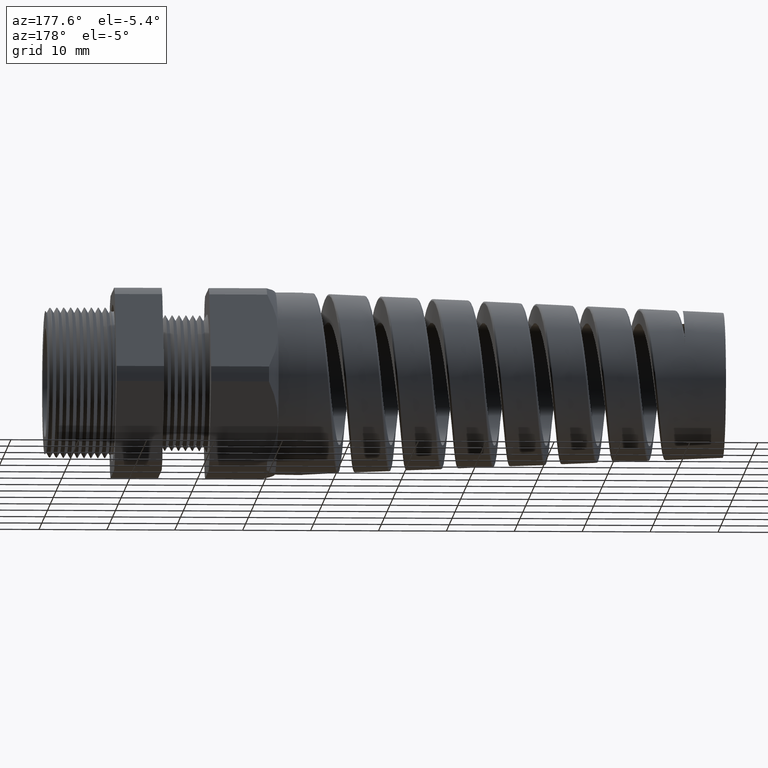
[diagram: clean part render]
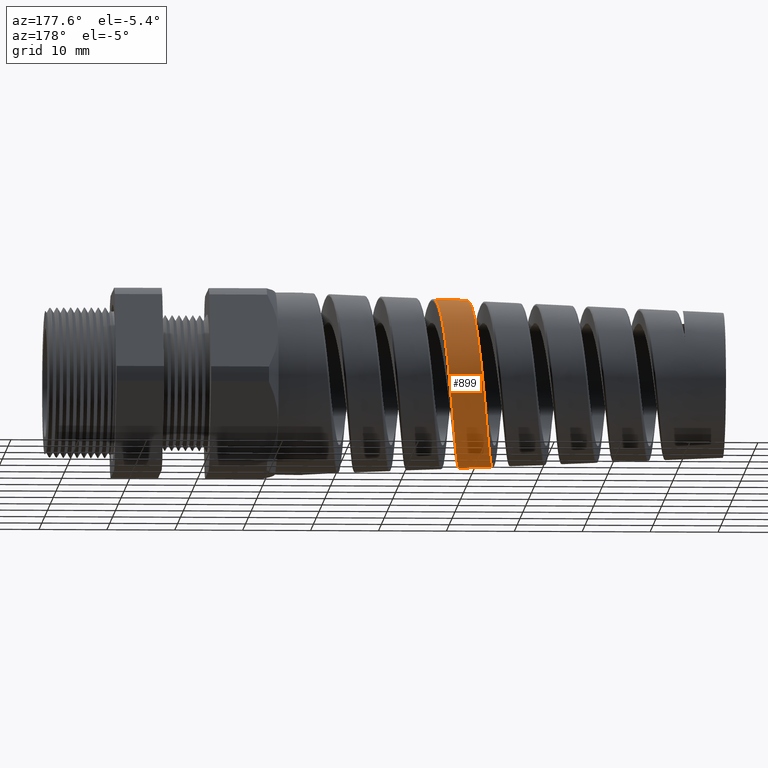
[diagram: same view with one face highlighted and labeled with its STEP entity id]
A machine part, auxiliary view. The second image highlights one B-rep face of the part: STEP entity #899.
In plain terms, the highlighted conical surface has half-angle 2.5 deg.
Its self-contained STEP definition (entity closure, byte-faithful):
#848 = EDGE_LOOP ( 'NONE', ( #900, #873, #876, #879 ) ) ;
#871 = VERTEX_POINT ( 'NONE', #7017 ) ;
#872 = VERTEX_POINT ( 'NONE', #7016 ) ;
#873 = ORIENTED_EDGE ( 'NONE', *, *, #874, .T. ) ;
#874 = EDGE_CURVE ( 'NONE', #872, #875, #7015, .T. ) ;
#875 = VERTEX_POINT ( 'NONE', #7011 ) ;
#876 = ORIENTED_EDGE ( 'NONE', *, *, #877, .T. ) ;
#877 = EDGE_CURVE ( 'NONE', #875, #878, #7009, .T. ) ;
#878 = VERTEX_POINT ( 'NONE', #7010 ) ;
#879 = ORIENTED_EDGE ( 'NONE', *, *, #880, .F. ) ;
#880 = EDGE_CURVE ( 'NONE', #871, #878, #6958, .T. ) ;
#899 = ADVANCED_FACE ( 'NONE', ( #5916 ), #5914, .T. ) ;
#900 = ORIENTED_EDGE ( 'NONE', *, *, #901, .T. ) ;
#901 = EDGE_CURVE ( 'NONE', #871, #872, #5909, .T. ) ;
#5857 = CARTESIAN_POINT ( 'NONE',  ( -2.360642178031954400, 6.088053702729461000E-013, 0.4867476284221823300 ) ) ;
#5858 = CARTESIAN_POINT ( 'NONE',  ( -2.362202108247921700, 0.01589824768566734700, 0.4866795203980623900 ) ) ;
#5859 = CARTESIAN_POINT ( 'NONE',  ( -2.363770448817714300, 0.03187396172094193700, 0.4858235674058733500 ) ) ;
#5860 = CARTESIAN_POINT ( 'NONE',  ( -2.366876014423838100, 0.06334296918111470600, 0.4825932175951855900 ) ) ;
#5861 = CARTESIAN_POINT ( 'NONE',  ( -2.369967248924988100, 0.09450347578120940600, 0.4778474637636200800 ) ) ;
#5862 = CARTESIAN_POINT ( 'NONE',  ( -2.373058741147371800, 0.1250529575456831600, 0.4701143661740167000 ) ) ;
#5863 = CARTESIAN_POINT ( 'NONE',  ( -2.376165083826359500, 0.1552912596340271200, 0.4608671375552795800 ) ) ;
#5864 = CARTESIAN_POINT ( 'NONE',  ( -2.377733683605348000, 0.1703297099778009700, 0.4554538644108495100 ) ) ;
#5865 = CARTESIAN_POINT ( 'NONE',  ( -2.382424419587694700, 0.2143821653622830800, 0.4370937173123010700 ) ) ;
#5866 = CARTESIAN_POINT ( 'NONE',  ( -2.385509008324024000, 0.2421421586439999100, 0.4221704892769691000 ) ) ;
#5867 = CARTESIAN_POINT ( 'NONE',  ( -2.390159137823261400, 0.2814281001084802900, 0.3958748164410731400 ) ) ;
#5868 = CARTESIAN_POINT ( 'NONE',  ( -2.391713011571464000, 0.2941283094396146500, 0.3864531830309390100 ) ) ;
#5869 = CARTESIAN_POINT ( 'NONE',  ( -2.394843786356402000, 0.3187142061478809900, 0.3662596071980213600 ) ) ;
#5870 = CARTESIAN_POINT ( 'NONE',  ( -2.396415143606032100, 0.3305495739207509100, 0.3555167410409078000 ) ) ;
#5871 = CARTESIAN_POINT ( 'NONE',  ( -2.401084949566256700, 0.3640718605153097600, 0.3219610897615400900 ) ) ;
#5872 = CARTESIAN_POINT ( 'NONE',  ( -2.404171061020829100, 0.3840488552209743200, 0.2976306707170361400 ) ) ;
#5873 = CARTESIAN_POINT ( 'NONE',  ( -2.408846639862338300, 0.4104440448512454200, 0.2581950883981331000 ) ) ;
#5874 = CARTESIAN_POINT ( 'NONE',  ( -2.410421606198408700, 0.4186829139602039100, 0.2444779620232459800 ) ) ;
#5875 = CARTESIAN_POINT ( 'NONE',  ( -2.413555425160300900, 0.4336851237939617900, 0.2164474168698265800 ) ) ;
#5876 = CARTESIAN_POINT ( 'NONE',  ( -2.415111940489588400, 0.4404463316276232000, 0.2021607384999528400 ) ) ;
#5877 = CARTESIAN_POINT ( 'NONE',  ( -2.419773143439021300, 0.4585673983790222200, 0.1585097691158997000 ) ) ;
#5878 = CARTESIAN_POINT ( 'NONE',  ( -2.422868563600597100, 0.4677852885552444800, 0.1283619677686000100 ) ) ;
#5879 = CARTESIAN_POINT ( 'NONE',  ( -2.427582936177740800, 0.4771725289460627700, 0.08152585138015813700 ) ) ;
#5880 = CARTESIAN_POINT ( 'NONE',  ( -2.429156235911682100, 0.4795284963769115800, 0.06574339058367492700 ) ) ;
#5881 = CARTESIAN_POINT ( 'NONE',  ( -2.432276625919567200, 0.4826610768721375500, 0.03429668467123764300 ) ) ;
#5882 = CARTESIAN_POINT ( 'NONE',  ( -2.433830548224830400, 0.4834519643115864400, 0.01856444000586293300 ) ) ;
#5883 = CARTESIAN_POINT ( 'NONE',  ( -2.436940572719288300, 0.4835000630158974900, -0.01291618841247194900 ) ) ;
#5884 = CARTESIAN_POINT ( 'NONE',  ( -2.438496548672600000, 0.4827573015123446400, -0.02866458440543398100 ) ) ;
#5885 = CARTESIAN_POINT ( 'NONE',  ( -2.441625182554495700, 0.4797114183832371600, -0.06017636053827438900 ) ) ;
#5886 = CARTESIAN_POINT ( 'NONE',  ( -2.443206666253258300, 0.4773877913387019600, -0.07602651585922827500 ) ) ;
#5887 = CARTESIAN_POINT ( 'NONE',  ( -2.447916522931588900, 0.4681517157074197600, -0.1227639812962546500 ) ) ;
#5888 = CARTESIAN_POINT ( 'NONE',  ( -2.451017137595864300, 0.4590308613771865700, -0.1529148409827534600 ) ) ;
#5889 = CARTESIAN_POINT ( 'NONE',  ( -2.455698845380159600, 0.4409955013398820800, -0.1966516371818310100 ) ) ;
#5890 = CARTESIAN_POINT ( 'NONE',  ( -2.457264272211631400, 0.4342529301998521700, -0.2109806065903356800 ) ) ;
#5891 = CARTESIAN_POINT ( 'NONE',  ( -2.460420656162083800, 0.4192575643483364400, -0.2391203507656278800 ) ) ;
#5892 = CARTESIAN_POINT ( 'NONE',  ( -2.461994274843653900, 0.4110835282810875200, -0.2527739053571762000 ) ) ;
#5893 = CARTESIAN_POINT ( 'NONE',  ( -2.466685298388816300, 0.3847936431109719700, -0.2921790474614655000 ) ) ;
#5894 = CARTESIAN_POINT ( 'NONE',  ( -2.469789943906988600, 0.3648469081987454300, -0.3165403030215089300 ) ) ;
#5895 = CARTESIAN_POINT ( 'NONE',  ( -2.474501880809359300, 0.3312610173819631700, -0.3501795357305198000 ) ) ;
#5896 = CARTESIAN_POINT ( 'NONE',  ( -2.476088493232054200, 0.3193933845459572300, -0.3609460379773589700 ) ) ;
#5897 = CARTESIAN_POINT ( 'NONE',  ( -2.479239250228620700, 0.2948281634069271900, -0.3811010591763274700 ) ) ;
#5898 = CARTESIAN_POINT ( 'NONE',  ( -2.482376989078828100, 0.2693740990231802100, -0.3999565317238025800 ) ) ;
#5899 = CARTESIAN_POINT ( 'NONE',  ( -2.485519606206205300, 0.2421641509198540500, -0.4162393856274202400 ) ) ;
#5900 = CARTESIAN_POINT ( 'NONE',  ( -2.488680060636786700, 0.2140615772109185600, -0.4312117066678586300 ) ) ;
#5901 = CARTESIAN_POINT ( 'NONE',  ( -2.490264172017351700, 0.1996052676603919900, -0.4380109021394442100 ) ) ;
#5902 = CARTESIAN_POINT ( 'NONE',  ( -2.494973423753703600, 0.1557444821449338000, -0.4560608741720313400 ) ) ;
#5903 = CARTESIAN_POINT ( 'NONE',  ( -2.498085081715869300, 0.1255959135615571100, -0.4651284846273995300 ) ) ;
#5904 = CARTESIAN_POINT ( 'NONE',  ( -2.502802102572233800, 0.07901524477428079100, -0.4742640580057376800 ) ) ;
#5905 = CARTESIAN_POINT ( 'NONE',  ( -2.504391680113460700, 0.06317048798492357100, -0.4765654986624690000 ) ) ;
#5906 = CARTESIAN_POINT ( 'NONE',  ( -2.507551059271658600, 0.03153561743676322500, -0.4795603768723038500 ) ) ;
#5907 = CARTESIAN_POINT ( 'NONE',  ( -2.509120341204317900, 0.01575129483205256500, -0.4802649318167333500 ) ) ;
#5908 = CARTESIAN_POINT ( 'NONE',  ( -2.510686947644852100, 5.917382613154077600E-013, -0.4801965323023927300 ) ) ;
#5909 = B_SPLINE_CURVE_WITH_KNOTS ( 'NONE', 3,
 ( #5908, #5907, #5906, #5905, #5904, #5903, #5902, #5901, #5900, #5899, #5898, #5897, #5896, #5895, #5894, #5893, #5892, #5891, #5890, #5889, #5888, #5887, #5886, #5885, #5884, #5883, #5882, #5881, #5880, #5879, #5878, #5877, #5876, #5875, #5874, #5873, #5872, #5871, #5870, #5869, #5868, #5867, #5866, #5865, #5864, #5863, #5862, #5861, #5860, #5859, #5858, #5857 ),
 .UNSPECIFIED., .F., .F.,
 ( 4, 2, 2, 2, 2, 1, 2, 2, 2, 2, 2, 2, 2, 2, 2, 2, 2, 2, 2, 2, 2, 2, 2, 2, 1, 2, 4 ),
 ( 0.2713036104362825900, 0.2725254269406061600, 0.2737472434449297300, 0.2761908764535769300, 0.2774126929579005000, 0.2786345094622240700, 0.2798563259665476400, 0.2810781424708712600, 0.2835217754795184000, 0.2847435919838419700, 0.2859654084881655400, 0.2884090414968126800, 0.2896308580011362500, 0.2908526745054598200, 0.2920744910097833900, 0.2932963075141070100, 0.2957399405227541500, 0.2969617570270777200, 0.2981835735314012900, 0.3006272065400484300, 0.3018490230443720000, 0.3030708395486956300, 0.3055144725573427600, 0.3067362890616663300, 0.3079581055659899000, 0.3091799220703134700, 0.3104017385746370400 ),
 .UNSPECIFIED. ) ;
#5911 = DIRECTION ( 'NONE',  ( 0.0000000000000000000, 0.0000000000000000000, -1.000000000000000000 ) ) ;
#5912 = DIRECTION ( 'NONE',  ( 1.000000000000000000, 0.0000000000000000000, 0.0000000000000000000 ) ) ;
#5913 = AXIS2_PLACEMENT_3D ( 'NONE', #5915, #5912, #5911 ) ;
#5914 = CONICAL_SURFACE ( 'NONE', #5913, 0.5299999999999999200, 0.04363323129985854900 ) ;
#5915 = CARTESIAN_POINT ( 'NONE',  ( -1.369999999999999900, 0.0000000000000000000, 0.0000000000000000000 ) ) ;
#5916 = FACE_OUTER_BOUND ( 'NONE', #848, .T. ) ;
#6955 = DIRECTION ( 'NONE',  ( 0.9990482215818576900, 0.0000000000000000000, -0.04361938736533631200 ) ) ;
#6956 = VECTOR ( 'NONE', #6955, 39.37007874015748100 ) ;
#6957 = CARTESIAN_POINT ( 'NONE',  ( -1.369999999999999900, 0.0000000000000000000, -0.5299999999999999200 ) ) ;
#6958 = LINE ( 'NONE', #6957, #6956 ) ;
#6959 = CARTESIAN_POINT ( 'NONE',  ( -2.317753644994508600, 8.477667412004149500E-013, -0.4886201822145601100 ) ) ;
#6960 = CARTESIAN_POINT ( 'NONE',  ( -2.316187925815375200, 0.01602776148436332900, -0.4886885429902233000 ) ) ;
#6961 = CARTESIAN_POINT ( 'NONE',  ( -2.314620499154044000, 0.03208065519157703900, -0.4879703122272190400 ) ) ;
#6962 = CARTESIAN_POINT ( 'NONE',  ( -2.311466792006478000, 0.06423632958918043500, -0.4849252567267346400 ) ) ;
#6963 = CARTESIAN_POINT ( 'NONE',  ( -2.309875859062739100, 0.08038453609950423100, -0.4825808234321540300 ) ) ;
#6964 = CARTESIAN_POINT ( 'NONE',  ( -2.305154407492702200, 0.1278533669567428800, -0.4732663932089276000 ) ) ;
#6965 = CARTESIAN_POINT ( 'NONE',  ( -2.302042350197733600, 0.1585404362966179000, -0.4640250858794682200 ) ) ;
#6966 = CARTESIAN_POINT ( 'NONE',  ( -2.297338862546350700, 0.2031384613846356200, -0.4456621418826545700 ) ) ;
#6967 = CARTESIAN_POINT ( 'NONE',  ( -2.295759662760938000, 0.2178133210492579600, -0.4387590098906326000 ) ) ;
#6968 = CARTESIAN_POINT ( 'NONE',  ( -2.292597571663618400, 0.2464415900596211300, -0.4235018963053199800 ) ) ;
#6969 = CARTESIAN_POINT ( 'NONE',  ( -2.291029109811764100, 0.2602661994808448400, -0.4152232833182771800 ) ) ;
#6970 = CARTESIAN_POINT ( 'NONE',  ( -2.286337554531260500, 0.3003161257549419900, -0.3885002969909375200 ) ) ;
#6971 = CARTESIAN_POINT ( 'NONE',  ( -2.283228748728980900, 0.3251309796198279000, -0.3681864919959553200 ) ) ;
#6972 = CARTESIAN_POINT ( 'NONE',  ( -2.278504793624430000, 0.3594544159259644400, -0.3338882814000169200 ) ) ;
#6973 = CARTESIAN_POINT ( 'NONE',  ( -2.276920572084911100, 0.3703951401062393600, -0.3218103675192997600 ) ) ;
#6974 = CARTESIAN_POINT ( 'NONE',  ( -2.273786068233810500, 0.3908174516235217200, -0.2969013965652261300 ) ) ;
#6975 = CARTESIAN_POINT ( 'NONE',  ( -2.270667715591501600, 0.4099136684113271500, -0.2711135789347814400 ) ) ;
#6976 = CARTESIAN_POINT ( 'NONE',  ( -2.267551455771959400, 0.4263980419953304900, -0.2435982892873881900 ) ) ;
#6977 = CARTESIAN_POINT ( 'NONE',  ( -2.264421868310047900, 0.4415591180912551400, -0.2152094572904366400 ) ) ;
#6978 = CARTESIAN_POINT ( 'NONE',  ( -2.262842404864798600, 0.4485084463813145400, -0.2005012999615423700 ) ) ;
#6979 = CARTESIAN_POINT ( 'NONE',  ( -2.258120547933199200, 0.4670540601563151800, -0.1555968251146442300 ) ) ;
#6980 = CARTESIAN_POINT ( 'NONE',  ( -2.255019032034433200, 0.4763070304750152100, -0.1248789460691932800 ) ) ;
#6981 = CARTESIAN_POINT ( 'NONE',  ( -2.250345127550032600, 0.4856529991751464300, -0.07767209396695906600 ) ) ;
#6982 = CARTESIAN_POINT ( 'NONE',  ( -2.248783747779427200, 0.4880073300433800400, -0.06174676687239543500 ) ) ;
#6983 = CARTESIAN_POINT ( 'NONE',  ( -2.245639266941883000, 0.4911498314641615200, -0.02950715927139289900 ) ) ;
#6984 = CARTESIAN_POINT ( 'NONE',  ( -2.244062714135891800, 0.4919220267806063700, -0.01326111297721829100 ) ) ;
#6985 = CARTESIAN_POINT ( 'NONE',  ( -2.239378897175541700, 0.4918488198747712500, 0.03501177229115920400 ) ) ;
#6986 = CARTESIAN_POINT ( 'NONE',  ( -2.236285730736086800, 0.4886720310669117100, 0.06689914218386312800 ) ) ;
#6987 = CARTESIAN_POINT ( 'NONE',  ( -2.231600843319087300, 0.4792070989894634000, 0.1142788940309396500 ) ) ;
#6988 = CARTESIAN_POINT ( 'NONE',  ( -2.230023081998224700, 0.4752343519279700300, 0.1300827357472958700 ) ) ;
#6989 = CARTESIAN_POINT ( 'NONE',  ( -2.226887962002540800, 0.4658046029026810000, 0.1610283005405170100 ) ) ;
#6990 = CARTESIAN_POINT ( 'NONE',  ( -2.225331414102760700, 0.4603613617486588300, 0.1761643905618460700 ) ) ;
#6991 = CARTESIAN_POINT ( 'NONE',  ( -2.220671699179162400, 0.4419045880051182800, 0.2205870324023125100 ) ) ;
#6992 = CARTESIAN_POINT ( 'NONE',  ( -2.217578607120158200, 0.4267842003628275500, 0.2488973398193694000 ) ) ;
#6993 = CARTESIAN_POINT ( 'NONE',  ( -2.212869801750062800, 0.3997438018048417600, 0.2893329538024931300 ) ) ;
#6994 = CARTESIAN_POINT ( 'NONE',  ( -2.211301142454439100, 0.3900644263484149300, 0.3023601253365567600 ) ) ;
#6995 = CARTESIAN_POINT ( 'NONE',  ( -2.208189568694269000, 0.3696478803929700900, 0.3272100092843393500 ) ) ;
#6996 = CARTESIAN_POINT ( 'NONE',  ( -2.205091718227783400, 0.3481042898219801600, 0.3509604184212996000 ) ) ;
#6997 = CARTESIAN_POINT ( 'NONE',  ( -2.201991478394283300, 0.3243337490834248300, 0.3725343439086551400 ) ) ;
#6998 = CARTESIAN_POINT ( 'NONE',  ( -2.198875201054212100, 0.2994316462140707600, 0.3930003361981088100 ) ) ;
#6999 = CARTESIAN_POINT ( 'NONE',  ( -2.197300442736709800, 0.2863386613442272500, 0.4027258355996592400 ) ) ;
#7000 = CARTESIAN_POINT ( 'NONE',  ( -2.192615111007238500, 0.2460401640120479800, 0.4296833887532478500 ) ) ;
#7001 = CARTESIAN_POINT ( 'NONE',  ( -2.189533237064845900, 0.2177709425602761000, 0.4448128135613971800 ) ) ;
#7002 = CARTESIAN_POINT ( 'NONE',  ( -2.184883429213874800, 0.1733130322741963700, 0.4633279960255890000 ) ) ;
#7003 = CARTESIAN_POINT ( 'NONE',  ( -2.183329059994581400, 0.1581489877824507100, 0.4687983805608160200 ) ) ;
#7004 = CARTESIAN_POINT ( 'NONE',  ( -2.180196165830773600, 0.1271101965948344400, 0.4782899937599460700 ) ) ;
#7005 = CARTESIAN_POINT ( 'NONE',  ( -2.178634801498167600, 0.1114045125102818800, 0.4822548981141391300 ) ) ;
#7006 = CARTESIAN_POINT ( 'NONE',  ( -2.173982728925792300, 0.06413277329684553800, 0.4917761851998563300 ) ) ;
#7007 = CARTESIAN_POINT ( 'NONE',  ( -2.170907195690768200, 0.03224952297997760900, 0.4950316366539642700 ) ) ;
#7008 = CARTESIAN_POINT ( 'NONE',  ( -2.167798487572967700, -5.500140585334693600E-013, 0.4951673657815789900 ) ) ;
#7009 = B_SPLINE_CURVE_WITH_KNOTS ( 'NONE', 3,
 ( #7008, #7007, #7006, #7005, #7004, #7003, #7002, #7001, #7000, #6999, #6998, #6997, #6996, #6995, #6994, #6993, #6992, #6991, #6990, #6989, #6988, #6987, #6986, #6985, #6984, #6983, #6982, #6981, #6980, #6979, #6978, #6977, #6976, #6975, #6974, #6973, #6972, #6971, #6970, #6969, #6968, #6967, #6966, #6965, #6964, #6963, #6962, #6961, #6960, #6959 ),
 .UNSPECIFIED., .F., .F.,
 ( 4, 2, 2, 2, 2, 2, 1, 2, 2, 2, 2, 2, 2, 2, 2, 2, 2, 1, 2, 2, 2, 2, 2, 2, 2, 4 ),
 ( 0.2035324060609475200, 0.2060002991270054900, 0.2072342456600344600, 0.2084681921930634200, 0.2109360852591213900, 0.2121700317921503500, 0.2134039783251793500, 0.2146379248582083200, 0.2158718713912373100, 0.2183397644572952500, 0.2195737109903242400, 0.2208076575233532100, 0.2232755505894111800, 0.2245094971224401400, 0.2257434436554691100, 0.2282113367215270700, 0.2294452832545560400, 0.2306792297875850400, 0.2319131763206140100, 0.2331471228536429700, 0.2356150159197009100, 0.2368489624527299100, 0.2380829089857588500, 0.2405508020518168100, 0.2417847485848457800, 0.2430186951178747400 ),
 .UNSPECIFIED. ) ;
#7010 = CARTESIAN_POINT ( 'NONE',  ( -2.317753644994508600, 8.477667412004149500E-013, -0.4886201822145601100 ) ) ;
#7011 = CARTESIAN_POINT ( 'NONE',  ( -2.167798487572967700, -5.500140585334693600E-013, 0.4951673657815789900 ) ) ;
#7012 = DIRECTION ( 'NONE',  ( 0.9990482215818576900, 5.341834311772761800E-018, 0.04361938736533631200 ) ) ;
#7013 = VECTOR ( 'NONE', #7012, 39.37007874015748100 ) ;
#7014 = CARTESIAN_POINT ( 'NONE',  ( -1.369999999999999900, 6.490628035480970000E-017, 0.5299999999999999200 ) ) ;
#7015 = LINE ( 'NONE', #7014, #7013 ) ;
#7016 = CARTESIAN_POINT ( 'NONE',  ( -2.360642178031954400, 6.088053702729461000E-013, 0.4867476284221823300 ) ) ;
#7017 = CARTESIAN_POINT ( 'NONE',  ( -2.510686947644852100, 5.917382613154077600E-013, -0.4801965323023927300 ) ) ;